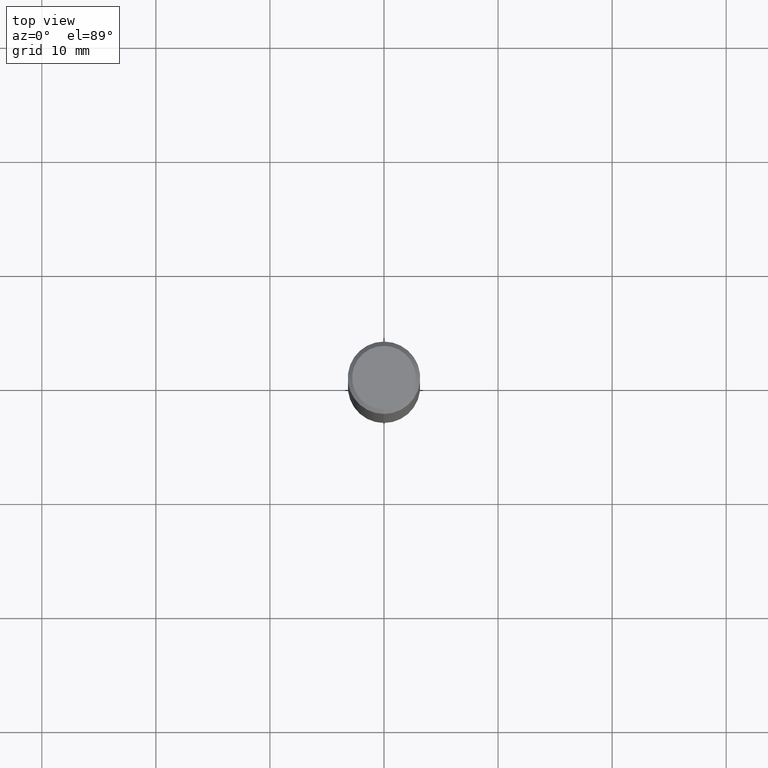
[diagram: clean part render]
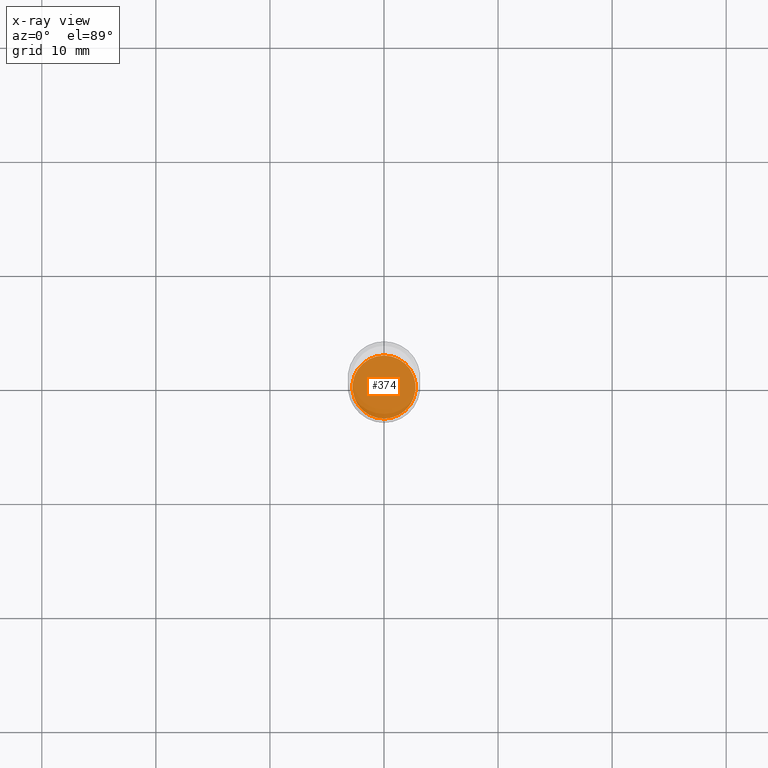
[diagram: x-ray — body ghosted, one internal face saturated and labeled with its STEP entity id]
A machine part, top view, then the same camera in x-ray: the body is ghosted and one INTERNAL B-rep face — a face not visible from any outside direction — is saturated and labeled: STEP entity #374.
In plain terms, the highlighted planar face has unit normal (-0, 0, 1).
Its self-contained STEP definition (entity closure, byte-faithful):
#17 = AXIS2_PLACEMENT_3D ( 'NONE', #122, #444, #123 ) ;
#27 = CARTESIAN_POINT ( 'NONE',  ( 7.755573960821947898E-16, 0.1088999999999934604, -1.875000000000000444 ) ) ;
#32 = FACE_OUTER_BOUND ( 'NONE', #199, .T. ) ;
#33 = PLANE ( 'NONE',  #353 ) ;
#36 = CIRCLE ( 'NONE', #331, 0.1088999999999999968 ) ;
#66 = CARTESIAN_POINT ( 'NONE',  ( 4.585283503251433812E-29, -6.546485276603377605E-15, -1.875000000000000000 ) ) ;
#119 = VERTEX_POINT ( 'NONE', #486 ) ;
#122 = CARTESIAN_POINT ( 'NONE',  ( 4.585283503251433812E-29, -6.546485276603377605E-15, -1.875000000000000000 ) ) ;
#123 = DIRECTION ( 'NONE',  ( -6.982962677686265133E-15, -1.000000000000000000, 2.508584016220627649E-15 ) ) ;
#146 = EDGE_CURVE ( 'NONE', #119, #451, #505, .T. ) ;
#187 = ORIENTED_EDGE ( 'NONE', *, *, #146, .F. ) ;
#198 = CARTESIAN_POINT ( 'NONE',  ( 4.585283503251433812E-29, -6.546485276603377605E-15, -1.875000000000000000 ) ) ;
#199 = EDGE_LOOP ( 'NONE', ( #187, #358 ) ) ;
#267 = DIRECTION ( 'NONE',  ( -2.445484535067431049E-29, 3.491458814188467188E-15, 1.000000000000000000 ) ) ;
#331 = AXIS2_PLACEMENT_3D ( 'NONE', #66, #497, #459 ) ;
#353 = AXIS2_PLACEMENT_3D ( 'NONE', #198, #267, #357 ) ;
#357 = DIRECTION ( 'NONE',  ( -6.982962677686265922E-15, -1.000000000000000000, 3.491458814188467188E-15 ) ) ;
#358 = ORIENTED_EDGE ( 'NONE', *, *, #380, .F. ) ;
#374 = ADVANCED_FACE ( 'NONE', ( #32 ), #33, .F. ) ;
#380 = EDGE_CURVE ( 'NONE', #451, #119, #36, .T. ) ;
#444 = DIRECTION ( 'NONE',  ( -2.445484535067431049E-29, 3.491458814188467583E-15, 1.000000000000000000 ) ) ;
#451 = VERTEX_POINT ( 'NONE', #27 ) ;
#459 = DIRECTION ( 'NONE',  ( -6.982962677686265133E-15, -1.000000000000000000, 2.508584016220627649E-15 ) ) ;
#486 = CARTESIAN_POINT ( 'NONE',  ( -7.604446355999884163E-16, -0.1089000000000065332, -1.874999999999999778 ) ) ;
#497 = DIRECTION ( 'NONE',  ( -2.445484535067431049E-29, 3.491458814188467583E-15, 1.000000000000000000 ) ) ;
#505 = CIRCLE ( 'NONE', #17, 0.1088999999999999968 ) ;